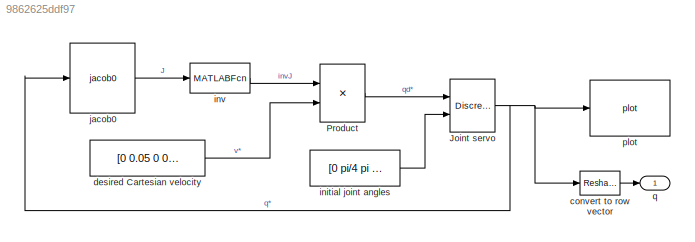
MODEL slx_9862625ddf97
KIND model
CONFIG AbsTol = auto
CONFIG FixedStep = auto
CONFIG MaxStep = auto
CONFIG MinStep = auto
CONFIG RelTol = 1e-3
CONFIG SampleTimeConstraint = Unconstrained
CONFIG Solver = ode45
CONFIG SolverMode = Auto
CONFIG SolverName = ode45
CONFIG StartTime = 0.0
CONFIG StopTime = 5.0
BLOCK [DiscreteIntegrator] Joint servo
  ICPrevOutput = DiscIntNeverNeededParam
  ICPrevScaledInput = DiscIntNeverNeededParam
  InitialCondition = [0 pi/4 pi 0 pi/4 0]'
  InitialConditionSetting = State (most efficient)
  InitialConditionSource = external
  Ports = [2, 1]
  SampleTime = 0.05
BLOCK [Product] Product
  InputSameDT = off
  Multiplication = Matrix(*)
  Ports = [2, 1]
  RndMeth = Floor
BLOCK [Reshape] convert to row vector
  OutputDimensionality = Customize
  OutputDimensions = 6
  Ports = [1, 1]
BLOCK [Constant] desired Cartesian velocity
  Value = [0 0.05 0 0 0 0]'
  VectorParams1D = off
BLOCK [Constant] initial joint angles
  Value = [0 pi/4 pi  0 pi/4 0]'
  VectorParams1D = off
BLOCK [MATLABFcn] inv
  MATLABFcn = inv
  Output1D = off
  Ports = [1, 1]
BLOCK [Reference] jacob0   REF=roblocks/Arm/jacob0  (lib defined in mdl_2a292b13c81b, mdl_69400f8cfe22, +12 more)

  Ports = [1, 1]
  SourceBlock = roblocks/Arm/jacob0
  robot = p560
BLOCK [Reference] plot  REF=roblocks/Arm/plot  (lib defined in mdl_2a292b13c81b, mdl_69400f8cfe22, +12 more)
  Ports = [1]
  SourceBlock = roblocks/Arm/plot
  fps = 25
  holdplot = on
  robot = p560
BLOCK [Outport] q
  IconDisplay = Port number
NET Joint servo:1 -> convert to row vector:1, jacob0 :1, plot:1
LINE Product:1 -> Joint servo:1
LINE convert to row vector:1 -> q:1
LINE desired Cartesian velocity:1 -> Product:2
LINE initial joint angles:1 -> Joint servo:2
LINE inv:1 -> Product:1
LINE jacob0 :1 -> inv:1
note: NET lines group one-source signal fan-out (src -> all destinations, sorted); 1:1 wires keep LINE
